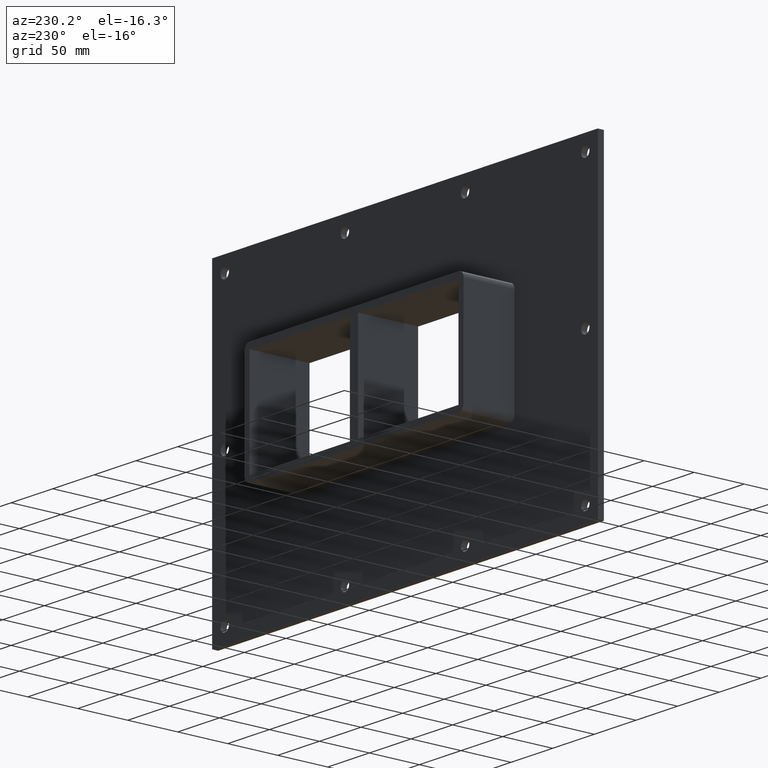
[diagram: clean part render]
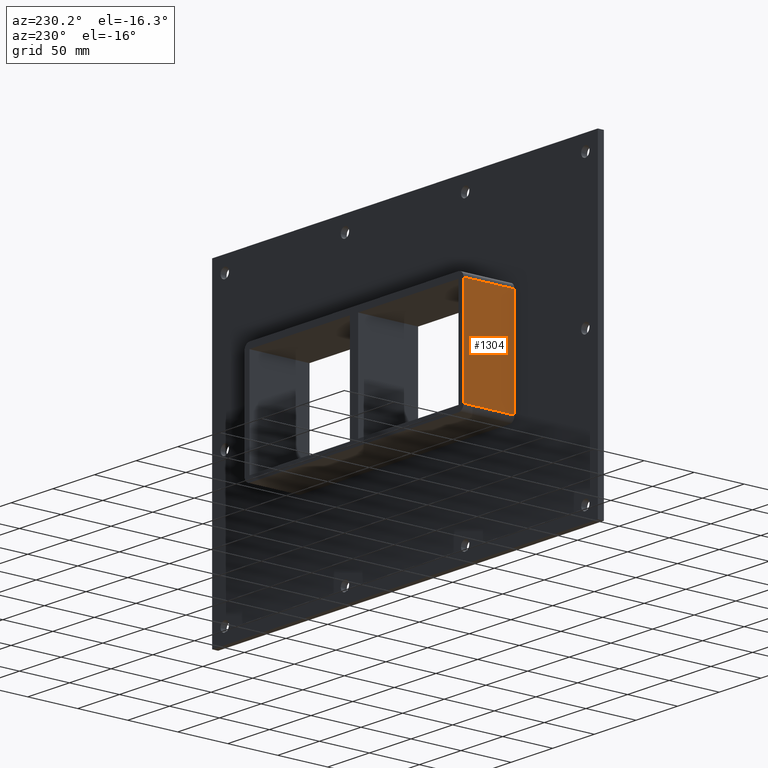
[diagram: same view with one face highlighted and labeled with its STEP entity id]
A machine part, auxiliary view. The second image highlights one B-rep face of the part: STEP entity #1304.
In plain terms, the highlighted planar face has unit normal (-1, 0, 0).
Its self-contained STEP definition (entity closure, byte-faithful):
#623=CARTESIAN_POINT('',(-131.5,6.000000000000001,-50.500000000000007));
#624=VERTEX_POINT('',#623);
#674=CARTESIAN_POINT('',(-131.5,6.000000000000001,50.500000000000007));
#675=VERTEX_POINT('',#674);
#683=CARTESIAN_POINT('',(-131.5,6.000000000000001,-50.500000000000007));
#684=DIRECTION('',(0.0,0.0,1.0));
#685=VECTOR('',#684,101.0);
#686=LINE('',#683,#685);
#687=EDGE_CURVE('',#624,#675,#686,.T.);
#1262=CARTESIAN_POINT('',(-131.5,57.0,-50.500000000000007));
#1263=VERTEX_POINT('',#1262);
#1264=CARTESIAN_POINT('',(-131.5,6.000000000000001,-50.500000000000007));
#1265=DIRECTION('',(0.0,1.0,0.0));
#1266=VECTOR('',#1265,51.0);
#1267=LINE('',#1264,#1266);
#1268=EDGE_CURVE('',#624,#1263,#1267,.T.);
#1281=CARTESIAN_POINT('',(-131.5,0.0,-56.5));
#1282=DIRECTION('',(-1.0,0.0,0.0));
#1283=DIRECTION('',(0.0,0.0,1.0));
#1284=AXIS2_PLACEMENT_3D('',#1281,#1282,#1283);
#1285=PLANE('',#1284);
#1286=ORIENTED_EDGE('',*,*,#687,.T.);
#1287=CARTESIAN_POINT('',(-131.5,57.0,50.500000000000007));
#1288=VERTEX_POINT('',#1287);
#1289=CARTESIAN_POINT('',(-131.5,57.0,50.500000000000007));
#1290=DIRECTION('',(0.0,-1.0,0.0));
#1291=VECTOR('',#1290,51.0);
#1292=LINE('',#1289,#1291);
#1293=EDGE_CURVE('',#1288,#675,#1292,.T.);
#1294=ORIENTED_EDGE('',*,*,#1293,.F.);
#1295=CARTESIAN_POINT('',(-131.5,57.0,-50.5));
#1296=DIRECTION('',(0.0,0.0,1.0));
#1297=VECTOR('',#1296,101.00000000000001);
#1298=LINE('',#1295,#1297);
#1299=EDGE_CURVE('',#1263,#1288,#1298,.T.);
#1300=ORIENTED_EDGE('',*,*,#1299,.F.);
#1301=ORIENTED_EDGE('',*,*,#1268,.F.);
#1302=EDGE_LOOP('',(#1286,#1294,#1300,#1301));
#1303=FACE_OUTER_BOUND('',#1302,.T.);
#1304=ADVANCED_FACE('',(#1303),#1285,.T.);